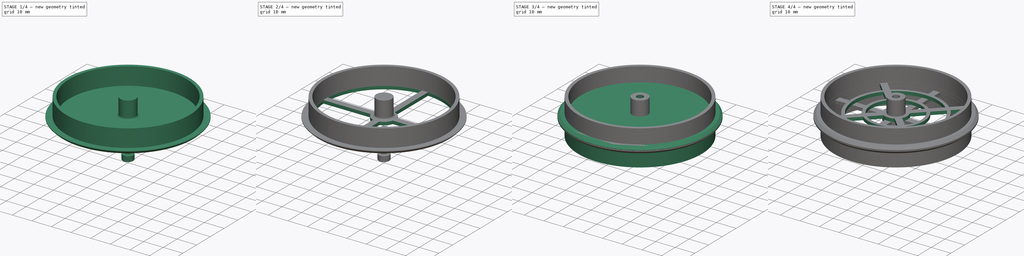
[diagram: build sequence overview — one tinted view per stage of 4, left to right]
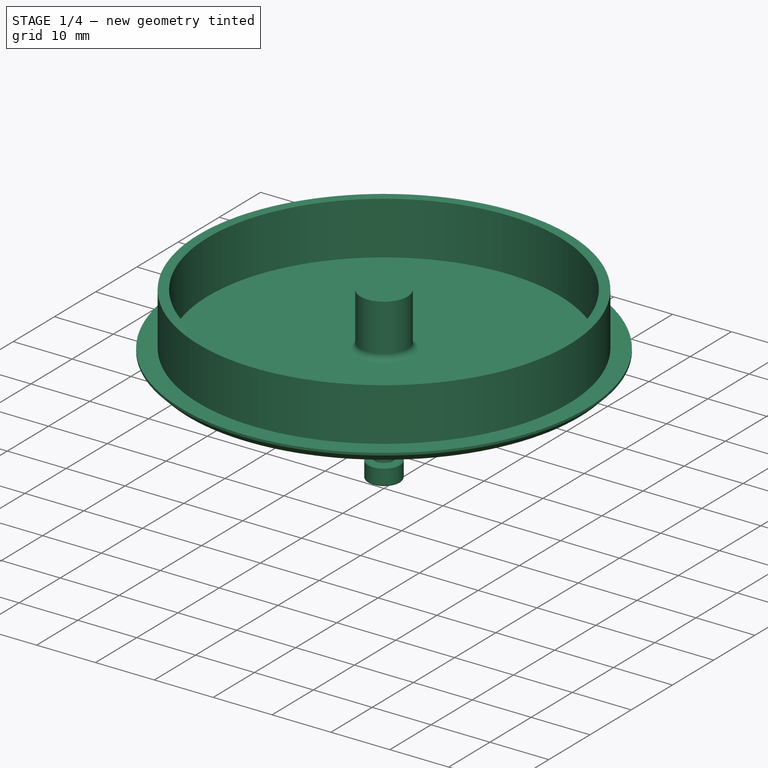
[diagram: stage 1 of 4 — iso view after this stage's code; geometry added in this stage tinted green]
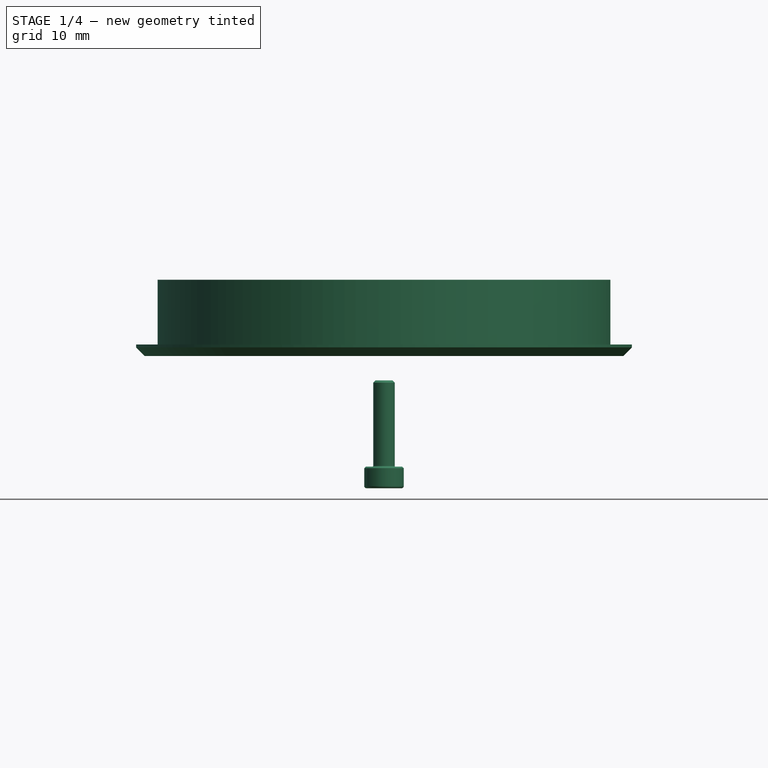
[diagram: stage 1 of 4 — front view after this stage's code; geometry added in this stage tinted green]
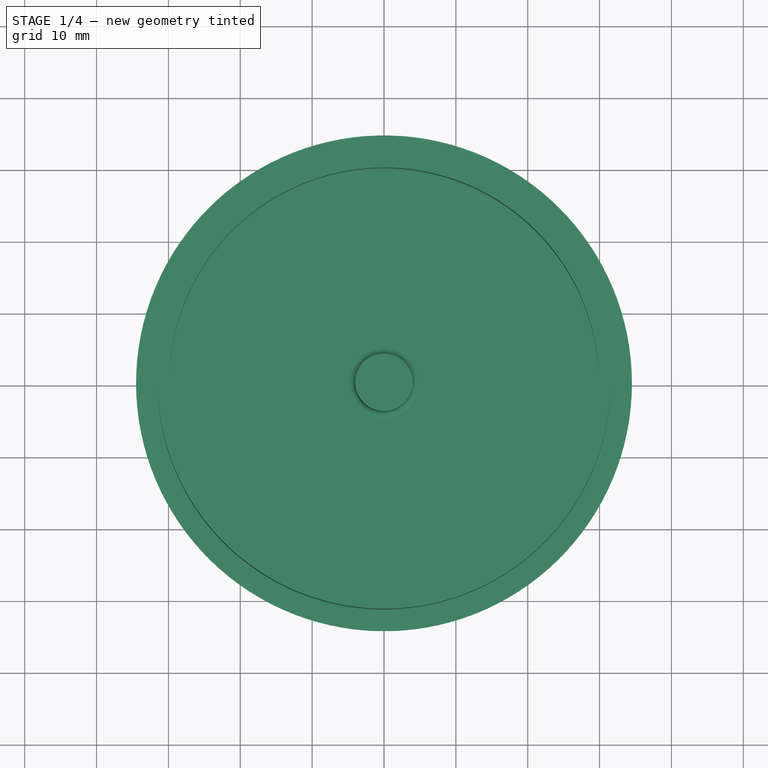
[diagram: stage 1 of 4 — top view after this stage's code; geometry added in this stage tinted green]
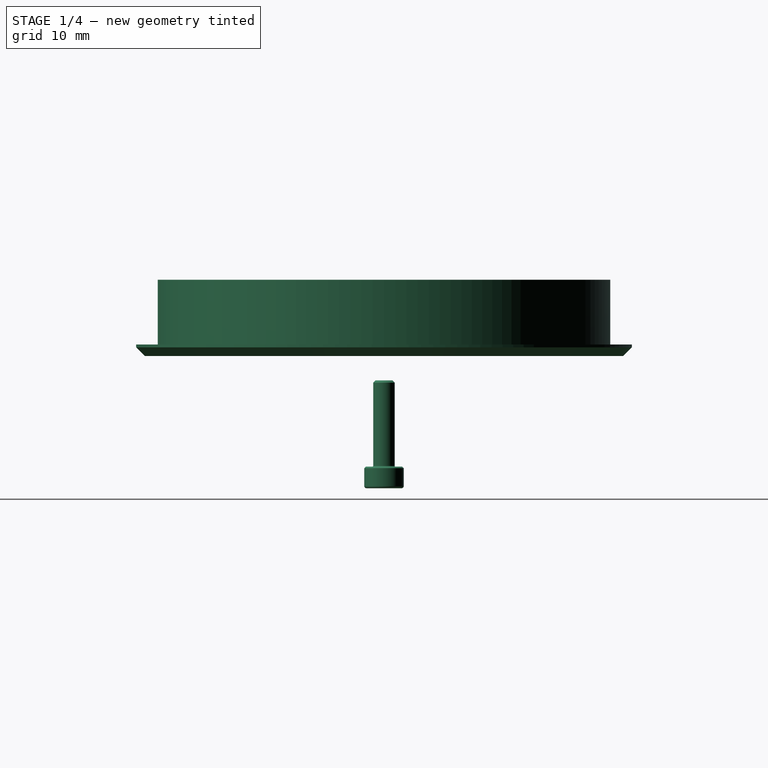
[diagram: stage 1 of 4 — right view after this stage's code; geometry added in this stage tinted green]
FCSTD DOCUMENT  (FreeCAD 0.20R27422 (Git))
Label: FanGrill
License: Creative Commons Attribution
LicenseURL: http://creativecommons.org/licenses/by/4.0/
objects: Sketcher::SketchObject×5, PartDesign::Revolution×2, PartDesign::Hole×2, PartDesign::Pocket×2, PartDesign::PolarPattern×2, PartDesign::Body×2, Part::FeaturePython×1
note: 22 computed .brp shape members not serialized (recipe doc carries the construction recipe); baked Part::Feature solids carry a one-line shape summary decoded from their .brp

FEATURE [PartDesign::Body] Body  label="OuterGrill"
  Group = -> [Sketch,Revolution,Sketch018,Hole,Pocket,PolarPattern]
  Origin = -> Origin
  Tip = -> PolarPattern
FEATURE [Sketcher::SketchObject] Sketch019
  FullyConstrained = true
  MapMode = 5
  Placement = pos=(0,0,0) rot=(1,0,0;1.5708rad)
  Support = -> [XZ_Plane001]
  sketch-geometry (12):
    g0: LineSegment StartX=31.5 StartY=9 StartZ=0 EndX=31.5 EndY=0 EndZ=0
    g1: LineSegment StartX=31.5 StartY=0 StartZ=0 EndX=34.5 EndY=0 EndZ=0
    g2: LineSegment StartX=34.5 StartY=0 StartZ=0 EndX=34.5 EndY=-0.4 EndZ=0
    g3: LineSegment StartX=34.5 StartY=-0.4 StartZ=0 EndX=33.3 EndY=-1.6 EndZ=0
    g4: LineSegment StartX=33.3 StartY=-1.6 StartZ=0 EndX=0 EndY=-1.6 EndZ=0
    g5: LineSegment StartX=0 StartY=-1.6 StartZ=0 EndX=0 EndY=9 EndZ=0
    g6: LineSegment StartX=0 StartY=9 StartZ=0 EndX=4 EndY=9 EndZ=0
    g7: LineSegment StartX=4 StartY=9 StartZ=0 EndX=4 EndY=1 EndZ=0
    g8: ArcOfCircle CenterX=5 CenterY=1 CenterZ=0 NormalX=0 NormalY=0 NormalZ=1 AngleXU=0 Radius=1 StartAngle=3.14159 EndAngle=4.71239
    g9: LineSegment StartX=5 StartY=0 StartZ=0 EndX=29.9 EndY=0 EndZ=0
    g10: LineSegment StartX=29.9 StartY=0 StartZ=0 EndX=29.9 EndY=9 EndZ=0
    g11: LineSegment StartX=29.9 StartY=9 StartZ=0 EndX=31.5 EndY=9 EndZ=0
  constraints (35):
    c: Vertical(g0)
    c: Coincident(g0,g1)
    c: Horizontal(g1)
    c: Coincident(g1,g2)
    c: Vertical(g2)
    c: Coincident(g2,g3)
    c: Coincident(g3,g4)
    c: PointOnObject(g4,g-2)
    c: Horizontal(g4)
    c: Coincident(g4,g5)
    c: PointOnObject(g5,g-2)
    c: Coincident(g5,g6)
    c: Horizontal(g6)
    c: Coincident(g6,g7)
    c: Vertical(g7)
    c: Tangent(g7,g8) = -1.5708
    c: Tangent(g8,g9) = -1.5708
    c: Coincident(g9,g10)
    c: Vertical(g10)
    c: Coincident(g10,g11)
    c: Coincident(g11,g0)
    c: Horizontal(g11)
    c: DistanceX(g-1,g0) = 31.5
    c: DistanceX(g11,g11) = 1.6
    c: DistanceX(g-1,g1) = 34.5
    c: DistanceY(g1,g0) = 9
    c: Horizontal(g6,g10)
    c: DistanceY(g3,g1) = 1.6
    c: Horizontal(g0,g9)
    c: Horizontal(g9)
    c: Radius(g8) = 1
    c: DistanceX(g6,g6) = 4
    c: DistanceY(g2,g2) = 0.4
    c: Angle(g3,g4) = 2.35619
    c: PointOnObject(g8,g-1)
FEATURE [PartDesign::Revolution] Revolution001
  Angle = 360
  Axis = (0,2e-16,1)
  Base = (0,0,0)
  Placement = pos=(0,0,0) rot=(1,0,0;1.5708rad)
  Profile = -> Sketch019
  ReferenceAxis = -> Sketch019 [V_Axis]
  Reversed = true
FEATURE [PartDesign::Body] Body001  label="InnerGrill"
  Group = -> [Sketch019,Revolution001,Sketch020,Pocket001,PolarPattern001,Sketch021,Hole001]
  Origin = -> Origin001
  Placement = pos=(0,0,-19) rot=(0,0,1;0rad)
  Tip = -> Hole001
FEATURE [Part::FeaturePython] Screw  label="M3x12-Screw"  # Fasteners workbench fastener (typed FeaturePython)
  Placement = pos=(0,-2.1e-15,-17) rot=(1,0,0;3.14159rad)
  diameter = 4
  invert = false
  length = 4
  lengthCustom = 12
  matchOuter = false
  offset = 0
  thread = false
  type = 34
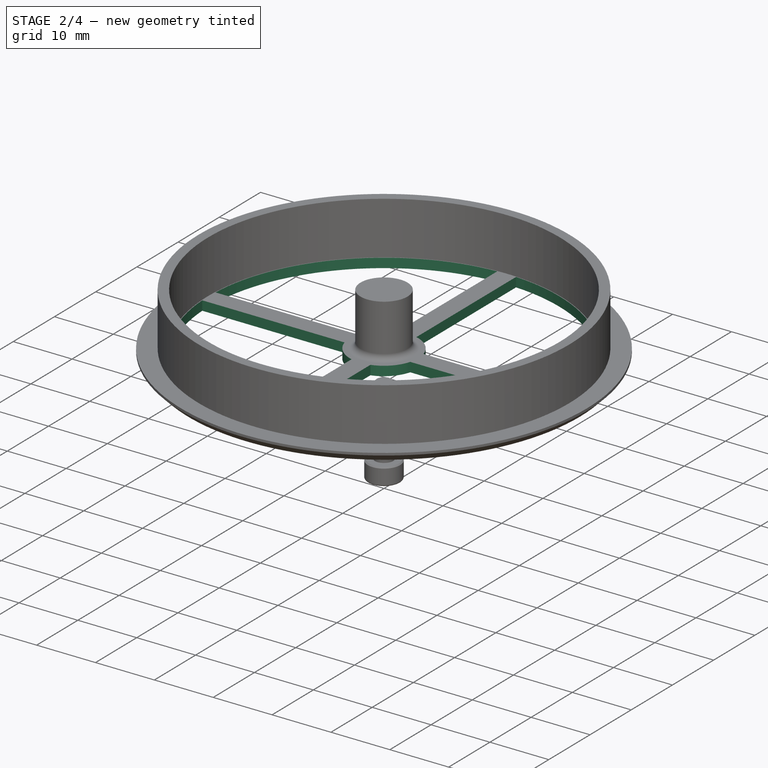
[diagram: stage 2 of 4 — iso view after this stage's code; geometry added in this stage tinted green]
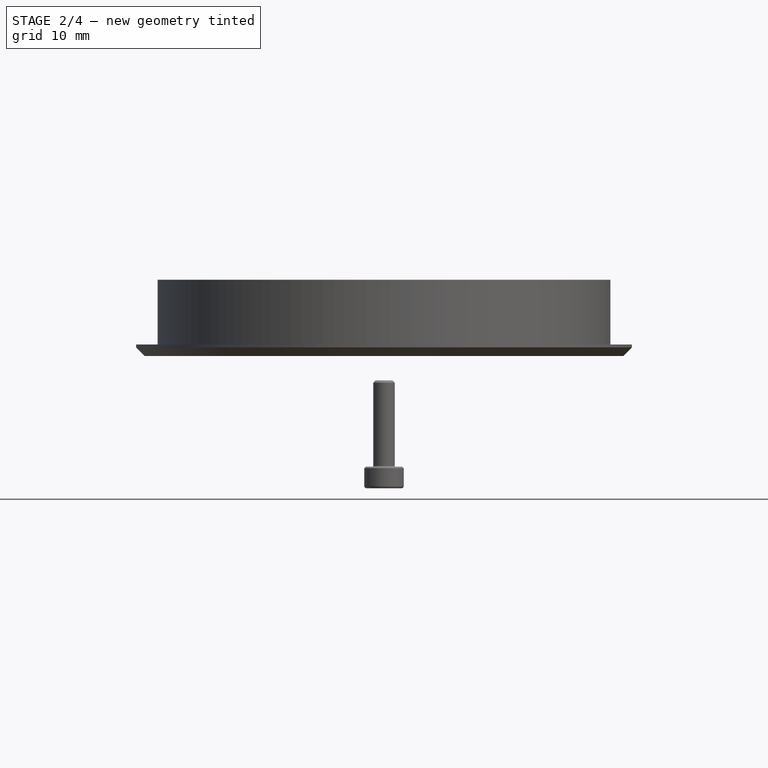
[diagram: stage 2 of 4 — front view after this stage's code; geometry added in this stage tinted green]
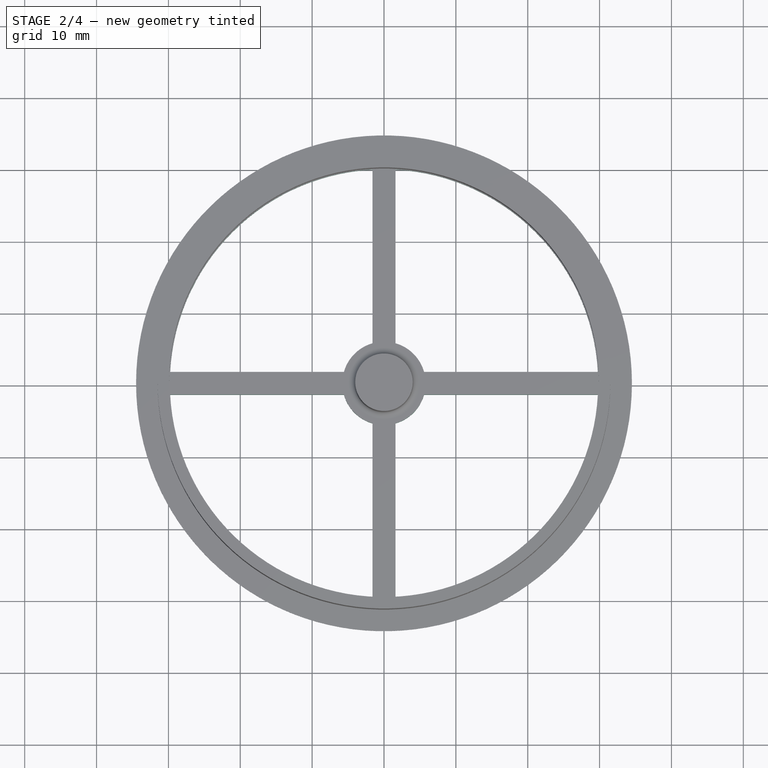
[diagram: stage 2 of 4 — top view after this stage's code; geometry added in this stage tinted green]
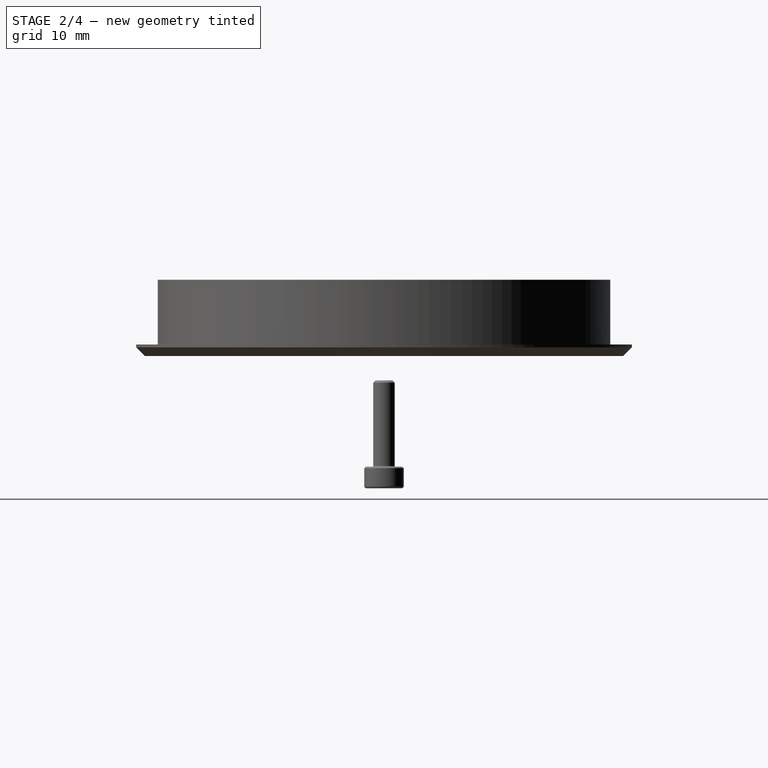
[diagram: stage 2 of 4 — right view after this stage's code; geometry added in this stage tinted green]
FEATURE [Sketcher::SketchObject] Sketch020
  FullyConstrained = true
  MapMode = 5
  Support = -> [XY_Plane001]
  sketch-geometry (4):
    g0: ArcOfCircle CenterX=0 CenterY=0 CenterZ=0 NormalX=0 NormalY=0 NormalZ=1 AngleXU=0 Radius=29.8 StartAngle=0.0537171 EndAngle=1.51708
    g1: ArcOfCircle CenterX=0 CenterY=0 CenterZ=0 NormalX=0 NormalY=0 NormalZ=1 AngleXU=0 Radius=5.8 StartAngle=0.279486 EndAngle=1.29131
    g2: LineSegment StartX=1.6 StartY=29.757 StartZ=0 EndX=1.6 EndY=5.57494 EndZ=0
    g3: LineSegment StartX=5.57494 StartY=1.6 StartZ=0 EndX=29.757 EndY=1.6 EndZ=0
  constraints (12):
    c: Coincident(g0,g-1)
    c: Coincident(g1,g0)
    c: Coincident(g2,g0)
    c: Coincident(g2,g1)
    c: Coincident(g3,g1)
    c: Coincident(g3,g0)
    c: Parallel(g-1,g3)
    c: Parallel(g2,g-2)
    c: DistanceY(g-1,g0) = 1.6
    c: DistanceX(g-1,g0) = 1.6
    c: Radius(g0) = 29.8
    c: Radius(g1) = 5.8
FEATURE [PartDesign::Pocket] Pocket001
  BaseFeature = -> Revolution001
  Direction = (0,0,-1)
  Length = 5
  Length2 = 5
  Placement = pos=(0,0,0) rot=(1,0,0;1.5708rad)
  Profile = -> Sketch020
  ReferenceAxis = -> Sketch020 [N_Axis]
  Type = 1
FEATURE [PartDesign::PolarPattern] PolarPattern001
  Angle = 360
  Axis = -> Sketch020 [N_Axis]
  BaseFeature = -> Pocket001
  Occurrences = 4
  Originals = -> [Pocket001]
  Overlap = 0
  Placement = pos=(0,0,0) rot=(1,0,0;1.5708rad)
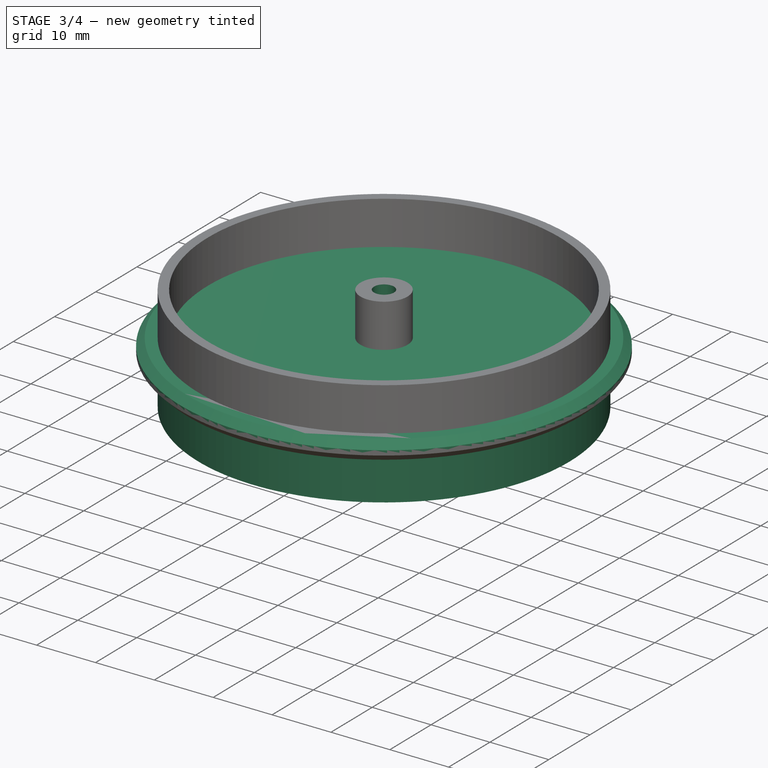
[diagram: stage 3 of 4 — iso view after this stage's code; geometry added in this stage tinted green]
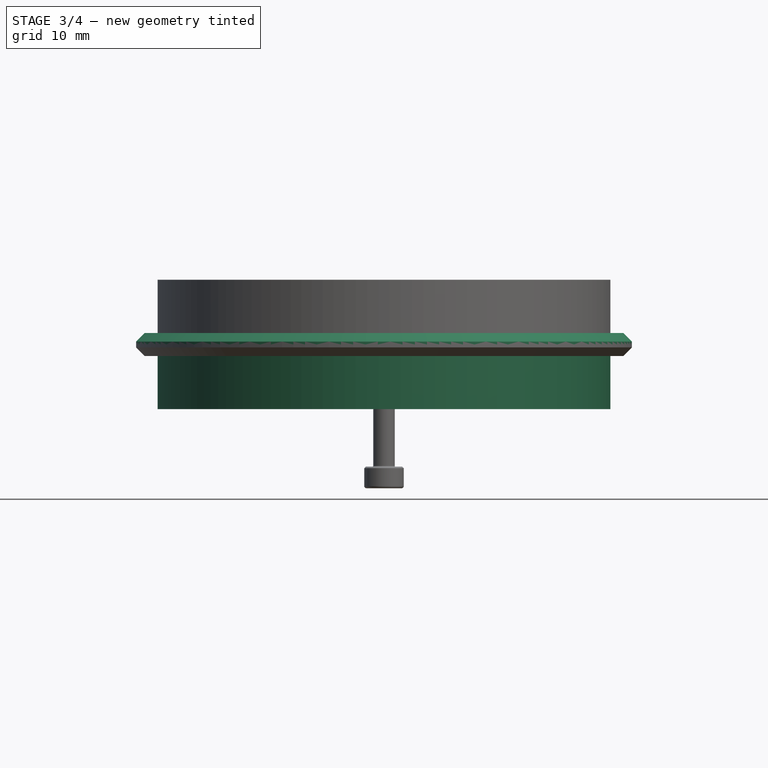
[diagram: stage 3 of 4 — front view after this stage's code; geometry added in this stage tinted green]
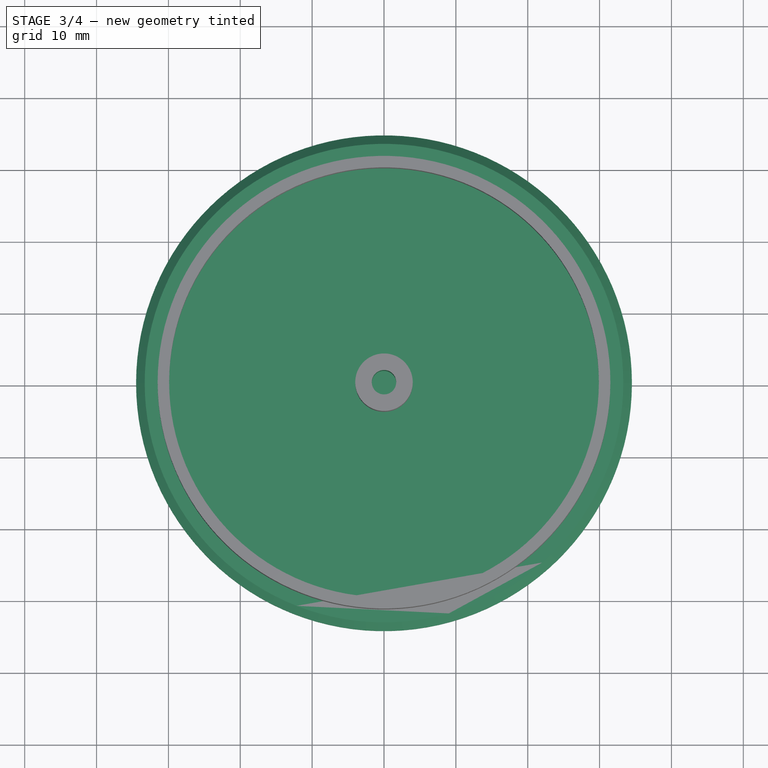
[diagram: stage 3 of 4 — top view after this stage's code; geometry added in this stage tinted green]
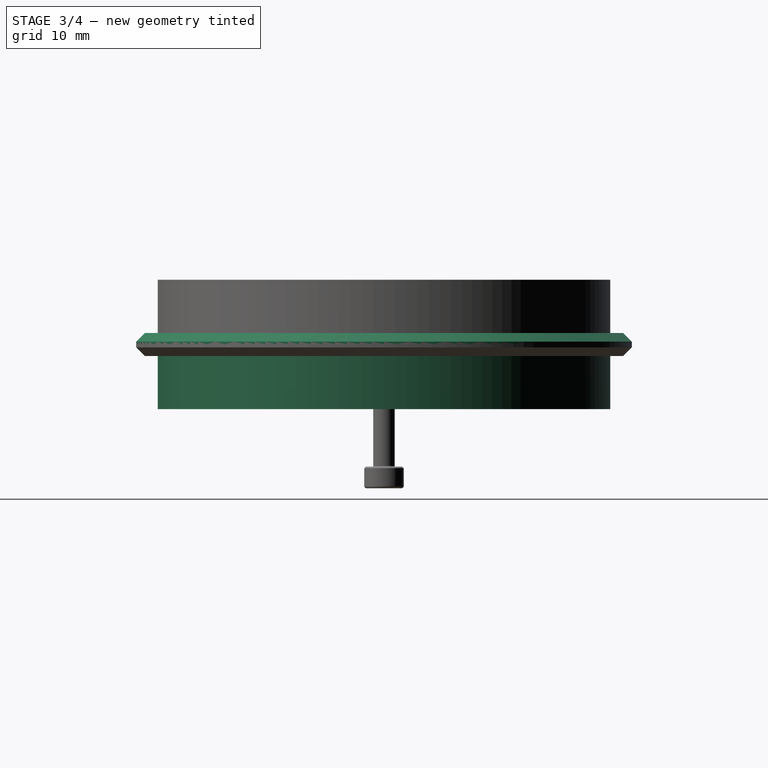
[diagram: stage 3 of 4 — right view after this stage's code; geometry added in this stage tinted green]
FEATURE [Sketcher::SketchObject] Sketch
  FullyConstrained = true
  MapMode = 5
  Placement = pos=(0,0,0) rot=(1,0,0;1.5708rad)
  Support = -> [XZ_Plane]
  sketch-geometry (12):
    g0: LineSegment StartX=29.9 StartY=-9 StartZ=0 EndX=31.5 EndY=-9 EndZ=0
    g1: LineSegment StartX=31.5 StartY=-9 StartZ=0 EndX=31.5 EndY=0 EndZ=0
    g2: LineSegment StartX=31.5 StartY=0 StartZ=0 EndX=34.5 EndY=0 EndZ=0
    g3: LineSegment StartX=34.5 StartY=0 StartZ=0 EndX=34.5 EndY=0.4 EndZ=0
    g4: LineSegment StartX=34.5 StartY=0.4 StartZ=0 EndX=33.3 EndY=1.6 EndZ=0
    g5: LineSegment StartX=5 StartY=0 StartZ=0 EndX=29.9 EndY=0 EndZ=0
    g6: LineSegment StartX=29.9 StartY=0 StartZ=0 EndX=29.9 EndY=-9 EndZ=0
    g7: LineSegment StartX=33.3 StartY=1.6 StartZ=0 EndX=0 EndY=1.6 EndZ=0
    g8: LineSegment StartX=4 StartY=-1 StartZ=0 EndX=4 EndY=-9 EndZ=0
    g9: LineSegment StartX=4 StartY=-9 StartZ=0 EndX=0 EndY=-9 EndZ=0
    g10: LineSegment StartX=0 StartY=-9 StartZ=0 EndX=0 EndY=1.6 EndZ=0
    g11: ArcOfCircle CenterX=5 CenterY=-1 CenterZ=0 NormalX=0 NormalY=0 NormalZ=1 AngleXU=0 Radius=1 StartAngle=1.5708 EndAngle=3.14159
  constraints (35):
    c: Horizontal(g0)
    c: Coincident(g0,g1)
    c: PointOnObject(g1,g-1)
    c: Vertical(g1)
    c: Coincident(g1,g2)
    c: Horizontal(g2)
    c: Coincident(g2,g3)
    c: Vertical(g3)
    c: Coincident(g3,g4)
    c: DistanceY(g3,g3) = 0.4
    c: DistanceY(g2,g4) = 1.6
    c: Angle(g4,g3) = 2.35619
    c: DistanceX(g1,g2) = 3
    c: Horizontal(g5)
    c: Coincident(g5,g6)
    c: Vertical(g6)
    c: Coincident(g0,g6)
    c: DistanceY(g0,g-1) = 9
    c: Horizontal(g7)
    c: DistanceX(g-1,g0) = 31.5
    c: DistanceX(g-1,g0) = 29.9
    c: Coincident(g4,g7)
    c: Vertical(g8)
    c: Coincident(g8,g9)
    c: PointOnObject(g9,g-2)
    c: Horizontal(g9)
    c: Coincident(g9,g10)
    c: Coincident(g10,g7)
    c: PointOnObject(g-1,g10)
    c: Horizontal(g0,g8)
    c: DistanceX(g9,g8) = 4
    c: Tangent(g5,g11) = 1.5708
    c: Tangent(g8,g11) = -1.5708
    c: Radius(g11) = 1
    c: PointOnObject(g5,g-1)
FEATURE [PartDesign::Revolution] Revolution
  Angle = 360
  Axis = (0,2e-16,1)
  Base = (0,0,0)
  Placement = pos=(0,0,0) rot=(1,0,0;1.5708rad)
  Profile = -> Sketch
  ReferenceAxis = -> Sketch [V_Axis]
  Reversed = true
FEATURE [Sketcher::SketchObject] Sketch018
  AttachmentOffset = pos=(0,0,2) rot=(0,0,1;0rad)
  FullyConstrained = true
  MapMode = 5
  Placement = pos=(0,0,2) rot=(0,0,1;0rad)
  Support = -> [XY_Plane]
  sketch-geometry (17):
    g0: Circle CenterX=0 CenterY=0 CenterZ=0 NormalX=0 NormalY=0 NormalZ=1 AngleXU=0 Radius=29.85
    g1: ArcOfCircle CenterX=0 CenterY=0 CenterZ=0 NormalX=0 NormalY=0 NormalZ=1 AngleXU=0 Radius=29.85 StartAngle=5.55141 EndAngle=7.01496
    g2: LineSegment StartX=0 StartY=0 StartZ=0 EndX=21.1071 EndY=-21.1071 EndZ=0
    g3: LineSegment StartX=0 StartY=0 StartZ=0 EndX=21.1071 EndY=21.1071 EndZ=0
    g4: LineSegment StartX=1.13137 StartY=-1.13137 StartZ=0 EndX=22.2082 EndY=19.9454 EndZ=0
    g5: LineSegment StartX=1.13137 StartY=1.13137 StartZ=0 EndX=22.2082 EndY=-19.9454 EndZ=0
    g6: ArcOfCircle CenterX=0 CenterY=0 CenterZ=0 NormalX=0 NormalY=0 NormalZ=1 AngleXU=0 Radius=22.8631 StartAngle=5.56783 EndAngle=6.99854
    g7: ArcOfCircle CenterX=0 CenterY=0 CenterZ=0 NormalX=0 NormalY=0 NormalZ=1 AngleXU=0 Radius=21.2674 StartAngle=5.57309 EndAngle=6.99328
    g8: ArcOfCircle CenterX=0 CenterY=0 CenterZ=0 NormalX=0 NormalY=0 NormalZ=1 AngleXU=0 Radius=14.2969 StartAngle=5.60993 EndAngle=6.95644
    g9: LineSegment StartX=22.2082 StartY=19.9454 StartZ=0 EndX=17.2584 EndY=14.9957 EndZ=0
    g10: LineSegment StartX=16.127 StartY=13.8643 StartZ=0 EndX=11.1773 EndY=8.91456 EndZ=0
    g11: LineSegment StartX=22.2082 StartY=-19.9454 StartZ=0 EndX=17.2584 EndY=-14.9957 EndZ=0
    g12: LineSegment StartX=16.127 StartY=-13.8643 StartZ=0 EndX=11.1773 EndY=-8.91456 EndZ=0
    g13: ArcOfCircle CenterX=0 CenterY=0 CenterZ=0 NormalX=0 NormalY=0 NormalZ=1 AngleXU=0 Radius=12.7082 StartAngle=5.62402 EndAngle=6.94235
    g14: ArcOfCircle CenterX=0 CenterY=0 CenterZ=0 NormalX=0 NormalY=0 NormalZ=1 AngleXU=0 Radius=5.8309 StartAngle=5.77575 EndAngle=6.79062
    g15: LineSegment StartX=5.09618 StartY=2.83344 StartZ=0 EndX=10.0459 EndY=7.78319 EndZ=0
    g16: LineSegment StartX=5.09618 StartY=-2.83344 StartZ=0 EndX=10.0459 EndY=-7.78319 EndZ=0
  constraints (51):
    c: Coincident(g14,g15)
    c: Coincident(g13,g15)
    c: Coincident(g8,g10)
    c: Coincident(g7,g10)
    c: Coincident(g6,g9)
    c: PointOnObject(g3,g0)
    c: Coincident(g1,g4)
    c: Coincident(g1,g9)
    c: PointOnObject(g1,g0)
    c: Coincident(g0,g1)
    c: Coincident(g0,g2)
    c: Coincident(g0,g3)
    c: Coincident(g0,g6)
    c: Coincident(g0,g7)
    c: Coincident(g0,g8)
    c: Coincident(g0,g13)
    c: Coincident(g0,g14)
    c: PointOnObject(g5,g3)
    c: PointOnObject(g4,g2)
    c: Coincident(g14,g16)
    c: Coincident(g16,g13)
    c: Coincident(g8,g12)
    c: Coincident(g12,g7)
    c: Coincident(g6,g11)
    c: Coincident(g1,g11)
    c: Parallel(g4,g3)
    c: Parallel(g5,g2)
    c: PointOnObject(g14,g4)
    c: PointOnObject(g13,g4)
    c: PointOnObject(g8,g4)
    c: PointOnObject(g7,g4)
    c: PointOnObject(g6,g4)
    c: PointOnObject(g14,g5)
    c: PointOnObject(g13,g5)
    c: PointOnObject(g8,g5)
    c: PointOnObject(g7,g5)
    c: PointOnObject(g6,g5)
    c: PointOnObject(g1,g5)
    c: PointOnObject(g5,g0)
    c: PointOnObject(g2,g0)
    c: Distance(g4,g1) = 1.6
    c: Distance(g5,g1) = 1.6
    c: Perpendicular(g3,g2)
    c: Angle(g-1,g3) = 0.785398
    c: Coincident(g-1,g1)
    c: Diameter(g0) = 59.7
    c: Distance(g7,g6) = 1.6
    c: Distance(g13,g8) = 1.6
    c: Equal(g15,g10)
    c: Equal(g10,g9)
    c: Distance(g11) = 7
FEATURE [PartDesign::Hole] Hole
  BaseFeature = -> Revolution
  CustomThreadClearance = 0
  Depth = 6
  DepthType = 0
  Diameter = 2.5
  DrillForDepth = false
  DrillPoint = 1
  DrillPointAngle = 118
  HoleCutCountersinkAngle = 90
  HoleCutCustomValues = false
  HoleCutDepth = 4
  HoleCutDiameter = 4
  HoleCutType = 1
  ModelThread = false
  Placement = pos=(0,0,0) rot=(1,0,0;1.5708rad)
  Profile = -> Revolution [Edge13]
  Tapered = false
  TaperedAngle = 90
  ThreadClass = 0
  ThreadDepth = 6
  ThreadDepthType = 0
  ThreadDirection = 0
  ThreadFit = 0
  ThreadSize = 0
  ThreadType = 0
  Threaded = false
  UseCustomThreadClearance = false
FEATURE [Sketcher::SketchObject] Sketch021
  AttachmentOffset = pos=(0,0,-1.6) rot=(0,0,1;0rad)
  FullyConstrained = true
  MapMode = 5
  Placement = pos=(0,0,-1.6) rot=(0,0,1;0rad)
  Support = -> [XY_Plane001]
  sketch-geometry (1):
    g0: Circle CenterX=0 CenterY=0 CenterZ=0 NormalX=0 NormalY=0 NormalZ=1 AngleXU=0 Radius=3
  constraints (2):
    c: Coincident(g0,g-1)
    c: Diameter(g0) = 6
FEATURE [PartDesign::Hole] Hole001
  BaseFeature = -> PolarPattern001
  CustomThreadClearance = 0
  Depth = 197.938
  DepthType = 1
  Diameter = 3.4
  DrillForDepth = false
  DrillPoint = 1
  DrillPointAngle = 118
  HoleCutCountersinkAngle = 90
  HoleCutCustomValues = false
  HoleCutDepth = 3.6
  HoleCutDiameter = 6.1
  HoleCutType = 1
  ModelThread = false
  Placement = pos=(0,0,0) rot=(1,0,0;1.5708rad)
  Profile = -> Sketch021
  Reversed = true
  Tapered = false
  TaperedAngle = 90
  ThreadClass = 0
  ThreadDepth = 197.938
  ThreadDepthType = 0
  ThreadDirection = 0
  ThreadFit = 0
  ThreadSize = 9
  ThreadType = 1
  Threaded = false
  UseCustomThreadClearance = false
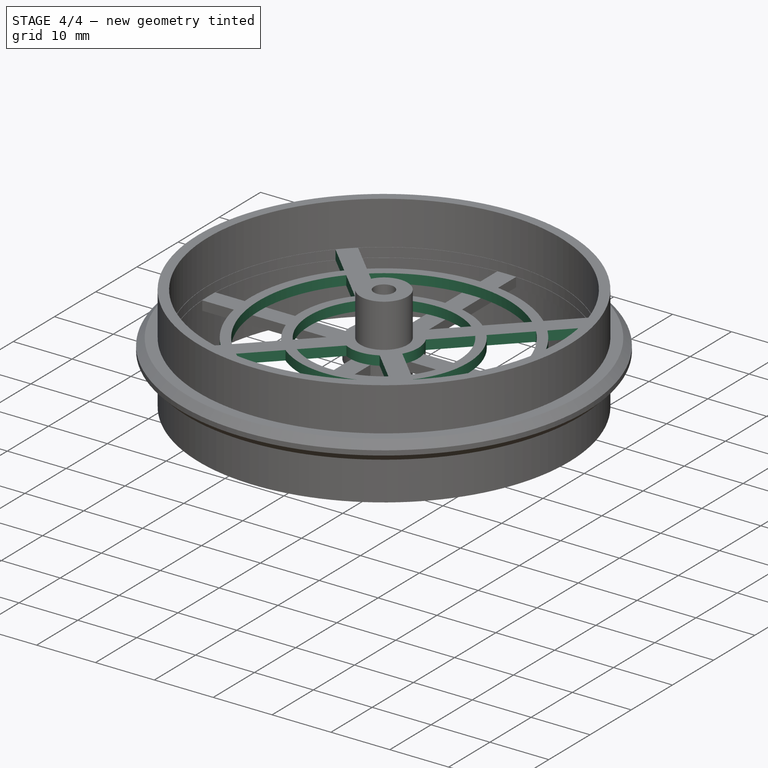
[diagram: stage 4 of 4 — iso view after this stage's code; geometry added in this stage tinted green]
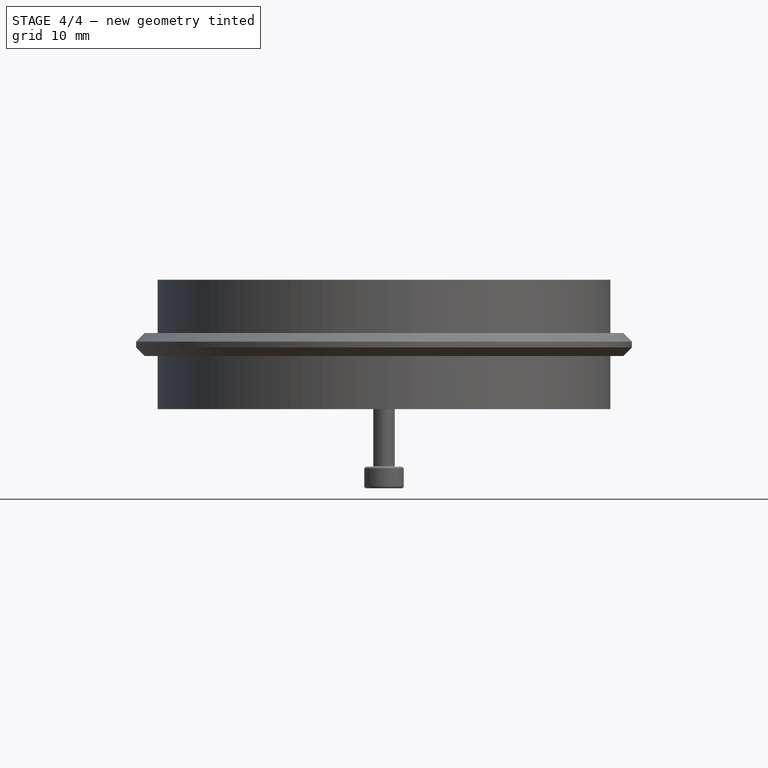
[diagram: stage 4 of 4 — front view after this stage's code; geometry added in this stage tinted green]
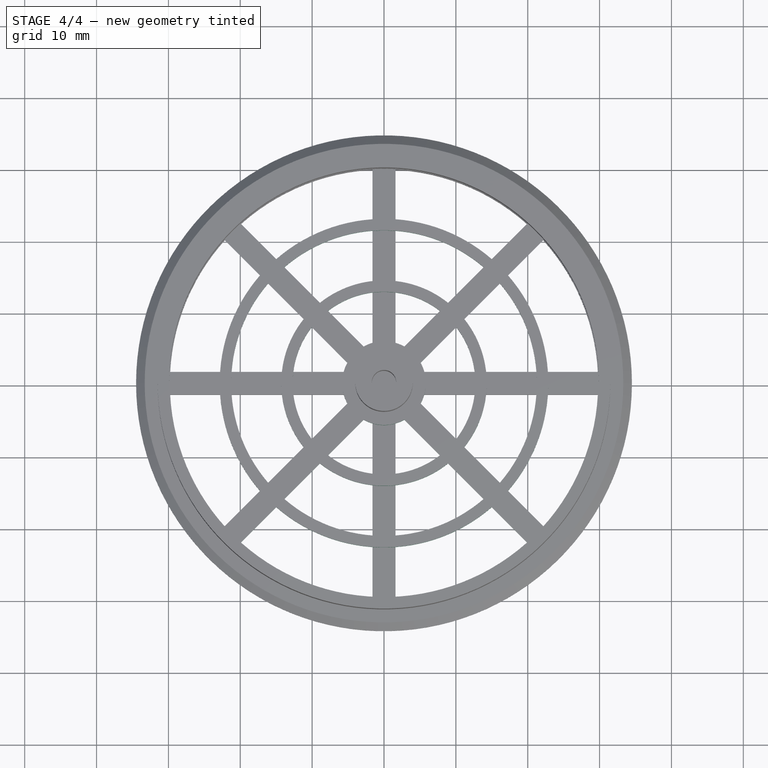
[diagram: stage 4 of 4 — top view after this stage's code; geometry added in this stage tinted green]
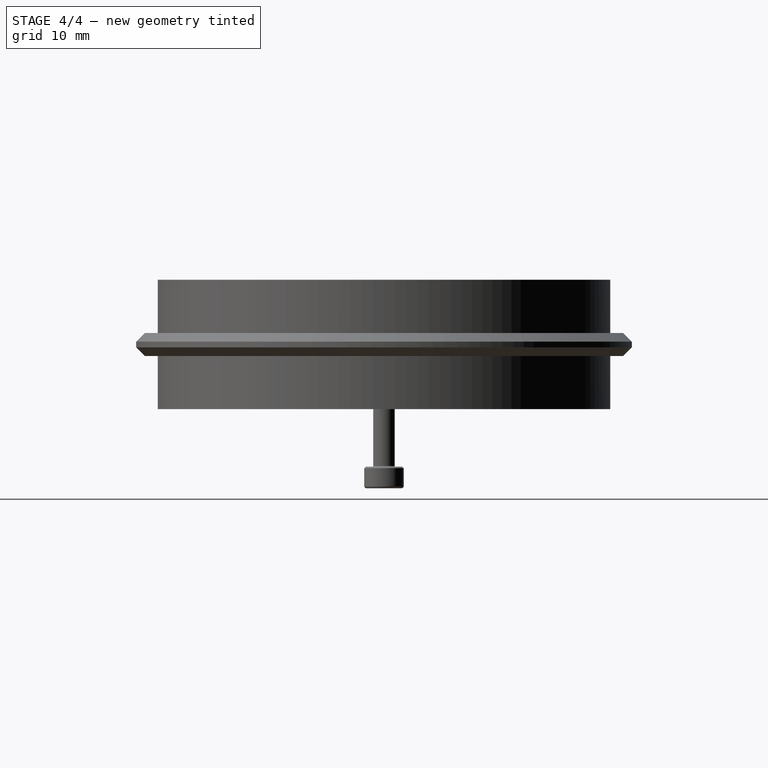
[diagram: stage 4 of 4 — right view after this stage's code; geometry added in this stage tinted green]
FEATURE [PartDesign::Pocket] Pocket
  BaseFeature = -> Hole
  Direction = (0,0,-1)
  Length = 5
  Length2 = 5
  Placement = pos=(0,0,0) rot=(1,0,0;1.5708rad)
  Profile = -> Sketch018
  ReferenceAxis = -> Sketch018 [N_Axis]
  Type = 1
FEATURE [PartDesign::PolarPattern] PolarPattern
  Angle = 360
  Axis = -> Sketch018 [N_Axis]
  BaseFeature = -> Pocket
  Occurrences = 4
  Originals = -> [Pocket]
  Overlap = 0
  Placement = pos=(0,0,0) rot=(1,0,0;1.5708rad)
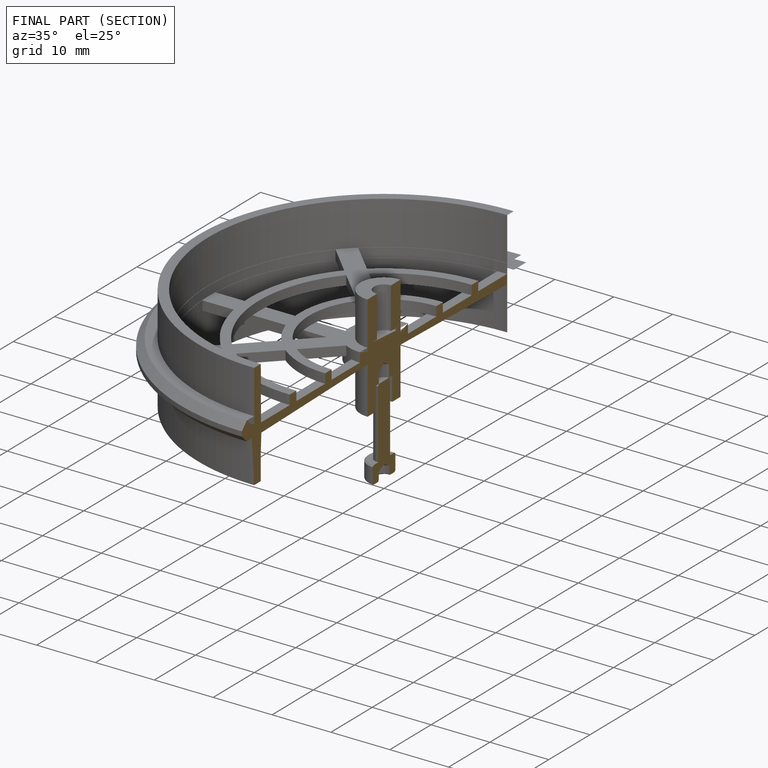
[diagram: finished part — half-section view (interior)]
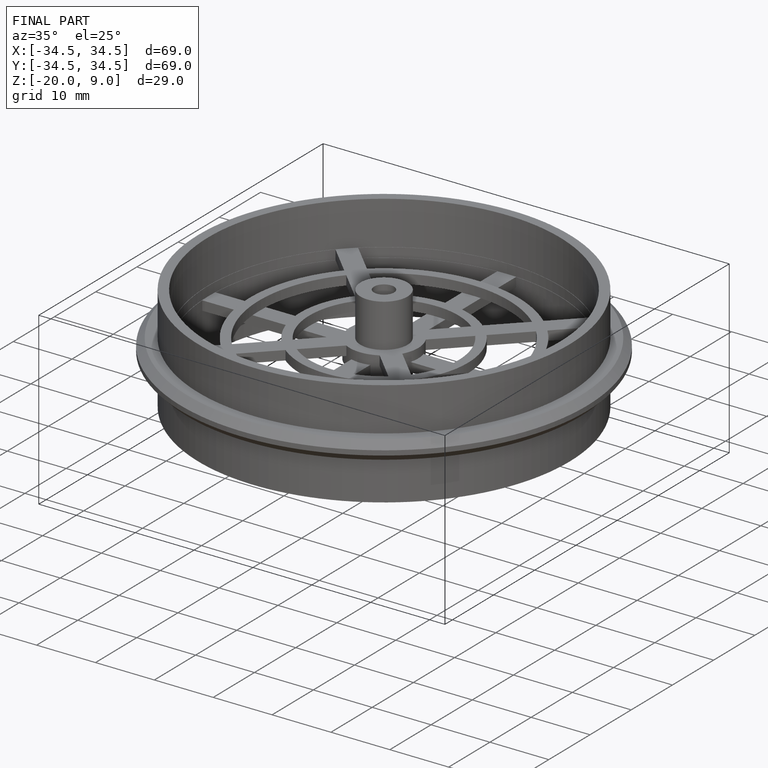
[diagram: finished part — iso view with bounding-box wireframe]
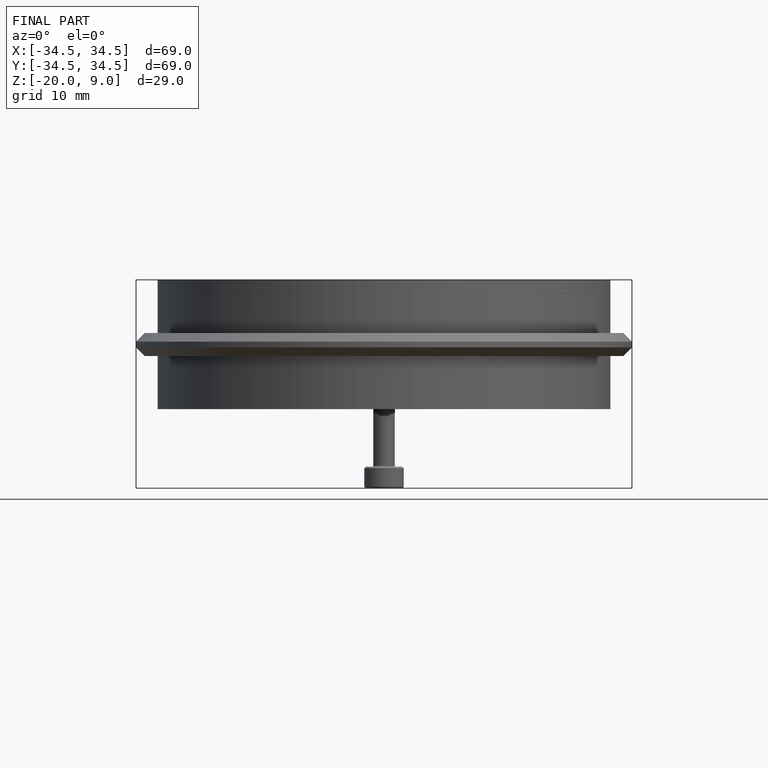
[diagram: finished part — front view with bounding-box wireframe]
